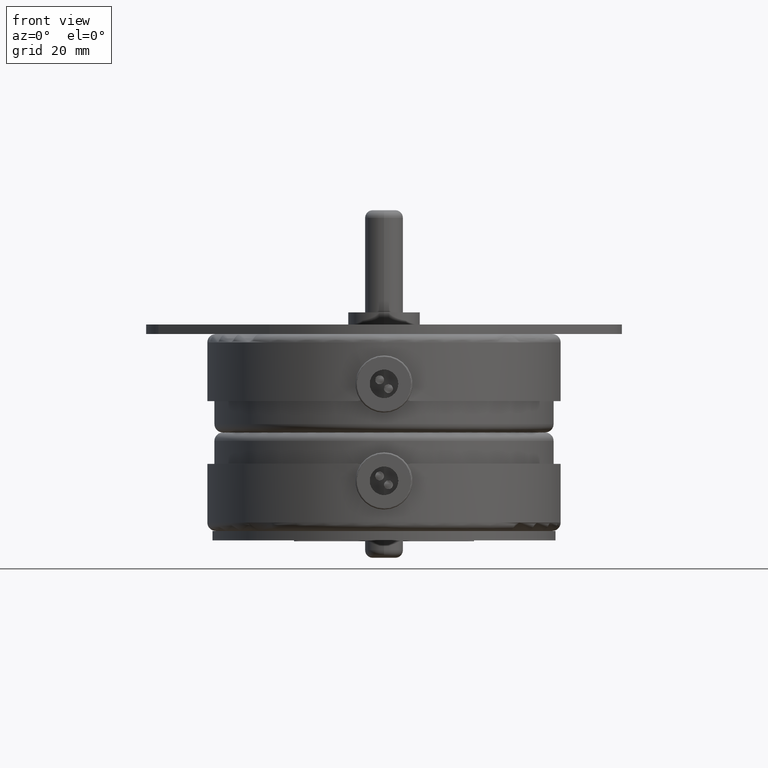
[diagram: clean part render]
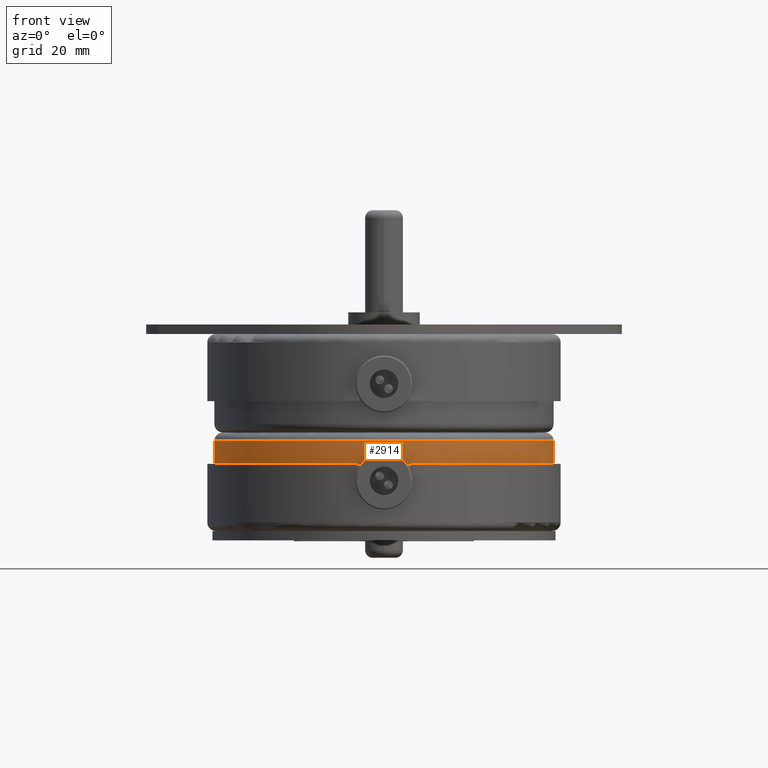
[diagram: same view with one face highlighted and labeled with its STEP entity id]
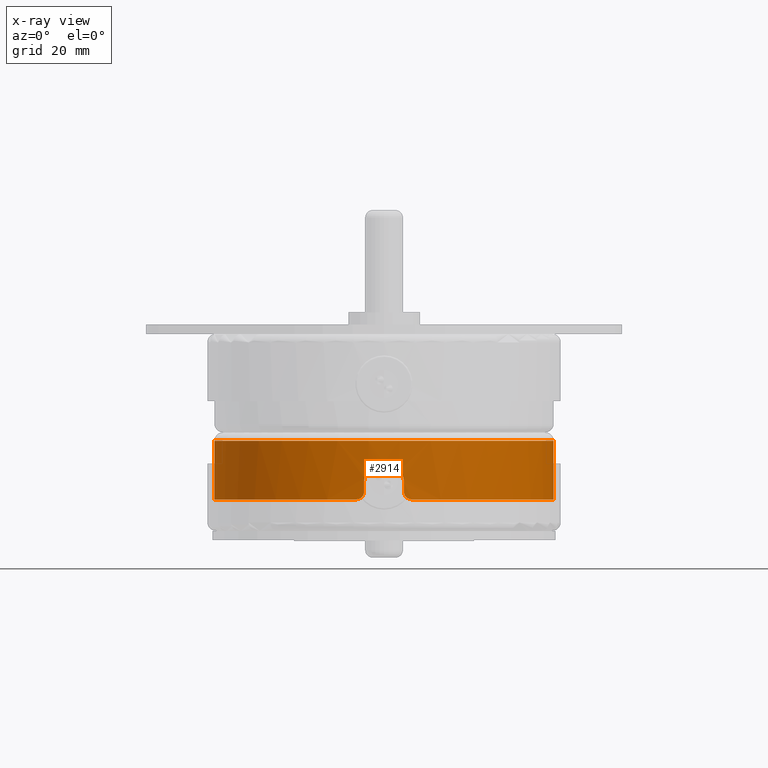
[diagram: x-ray of the same camera — body ghosted, the highlighted face saturated]
A machine part, front view. The second image highlights one B-rep face of the part: STEP entity #2914.
The next image is the same camera in x-ray: the body ghosted, the highlighted face saturated — about 0% of this face is hidden behind the body in this view.
In plain terms, the highlighted cylindrical surface (partial cylindrical patch) has radius 28.2575 mm, axis along (0, 0, -1).
Its self-contained STEP definition (entity closure, byte-faithful):
#2545=CARTESIAN_POINT('',(-5.5E-2,0.E0,0.E0));
#2546=DIRECTION('',(-1.E0,0.E0,0.E0));
#2547=DIRECTION('',(0.E0,0.E0,-1.E0));
#2548=AXIS2_PLACEMENT_3D('',#2545,#2546,#2547);
#2555=DIRECTION('',(1.E0,2.387833520655E-12,1.998401444325E-13));
#2556=VECTOR('',#2555,6.5E-2);
#2557=CARTESIAN_POINT('',(-3.9E-1,-1.104803316515E0,-1.306364490371E-1));
#2558=LINE('',#2557,#2556);
#2559=CARTESIAN_POINT('',(-3.25E-1,-1.104803316515E0,-1.306364490371E-1));
#2560=CARTESIAN_POINT('',(-3.203833331623E-1,-1.104803918065E0,
-1.306313616764E-1));
#2561=CARTESIAN_POINT('',(-3.112364979396E-1,-1.104865614601E0,
-1.301112118168E-1));
#2562=CARTESIAN_POINT('',(-2.977117441596E-1,-1.105142109154E0,
-1.277510933350E-1));
#2563=CARTESIAN_POINT('',(-2.845745453408E-1,-1.105584120232E0,
-1.238831141294E-1));
#2564=CARTESIAN_POINT('',(-2.718425527748E-1,-1.106173435727E0,
-1.185289604730E-1));
#2565=CARTESIAN_POINT('',(-2.597009391929E-1,-1.106886958124E0,
-1.116968487864E-1));
#2566=CARTESIAN_POINT('',(-2.484486534437E-1,-1.107676863542E0,
-1.036050563497E-1));
#2567=CARTESIAN_POINT('',(-2.380765684737E-1,-1.108515777482E0,
-9.424116538555E-2));
#2568=CARTESIAN_POINT('',(-2.288255757111E-1,-1.109353439127E0,
-8.386045220348E-2));
#2569=CARTESIAN_POINT('',(-2.204625575071E-1,-1.110183094772E0,
-7.210350752066E-2));
#2570=CARTESIAN_POINT('',(-2.134180716466E-1,-1.110932973098E0,
-5.952832196449E-2));
#2571=CARTESIAN_POINT('',(-2.075209227738E-1,-1.111596637967E0,
-4.556372012779E-2));
#2572=CARTESIAN_POINT('',(-2.033292953349E-1,-1.112100799902E0,
-3.108586908522E-2));
#2573=CARTESIAN_POINT('',(-2.006143508697E-1,-1.112429594826E0,
-1.532365843578E-2));
#2574=CARTESIAN_POINT('',(-1.996669659122E-1,-1.112527927342E0,
-9.774176847742E-4));
#2575=CARTESIAN_POINT('',(-2.003693410004E-1,-1.112455955111E0,
1.318450422543E-2));
#2576=CARTESIAN_POINT('',(-2.028426620385E-1,-1.112161698801E0,
2.883252300226E-2));
#2577=CARTESIAN_POINT('',(-2.067861527791E-1,-1.111682458321E0,
4.342306519224E-2));
#2578=CARTESIAN_POINT('',(-2.123878913023E-1,-1.111046353880E0,
5.738596503600E-2));
#2579=CARTESIAN_POINT('',(-2.193201521983E-1,-1.110301811205E0,
7.026292498639E-2));
#2580=CARTESIAN_POINT('',(-2.274584370913E-1,-1.109484021771E0,
8.212966138802E-2));
#2581=CARTESIAN_POINT('',(-2.369212561117E-1,-1.108614553838E0,
9.309283478640E-2));
#2582=CARTESIAN_POINT('',(-2.474951084637E-1,-1.107748520413E0,
1.028454501588E-1));
#2583=CARTESIAN_POINT('',(-2.590459634669E-1,-1.106927637712E0,
1.113017598761E-1));
#2584=CARTESIAN_POINT('',(-2.716525260899E-1,-1.106182527319E0,
1.184472297684E-1));
#2585=CARTESIAN_POINT('',(-2.845179913672E-1,-1.105584501405E0,
1.238806435688E-1));
#2586=CARTESIAN_POINT('',(-2.981205670525E-1,-1.105130551554E0,
1.278511239456E-1));
#2587=CARTESIAN_POINT('',(-3.113187309169E-1,-1.104866637366E0,
1.301020163255E-1));
#2588=CARTESIAN_POINT('',(-3.204208548955E-1,-1.104804385777E0,
1.306274061986E-1));
#2589=CARTESIAN_POINT('',(-3.25E-1,-1.104803316515E0,1.306364490372E-1));
#2591=DIRECTION('',(-1.E0,1.930080027425E-12,-3.074463760500E-13));
#2592=VECTOR('',#2591,6.5E-2);
#2593=CARTESIAN_POINT('',(-3.25E-1,-1.104803316515E0,1.306364490372E-1));
#2594=LINE('',#2593,#2592);
#2595=CARTESIAN_POINT('',(-3.9E-1,-1.104803316515E0,1.306364490371E-1));
#2596=CARTESIAN_POINT('',(-3.944051338006E-1,-1.104802200925E0,
1.306458836719E-1));
#2597=CARTESIAN_POINT('',(-4.028753155529E-1,-1.104667642622E0,
1.317931054413E-1));
#2598=CARTESIAN_POINT('',(-4.150759014282E-1,-1.104036969451E0,
1.370146105615E-1));
#2599=CARTESIAN_POINT('',(-4.252263220132E-1,-1.103022350576E0,
1.450101732519E-1));
#2600=CARTESIAN_POINT('',(-4.334324800851E-1,-1.101558383697E0,
1.557983367665E-1));
#2601=CARTESIAN_POINT('',(-4.386707857617E-1,-1.099695419756E0,
1.684862076758E-1));
#2602=CARTESIAN_POINT('',(-4.399887651091E-1,-1.098193449324E0,
1.779125374851E-1));
#2603=CARTESIAN_POINT('',(-4.4E-1,-1.097363725818E0,1.828909600271E-1));
#2605=DIRECTION('',(1.E0,0.E0,0.E0));
#2606=VECTOR('',#2605,3.85E-1);
#2607=CARTESIAN_POINT('',(-4.4E-1,0.E0,1.1125E0));
#2608=LINE('',#2607,#2606);
#2609=CARTESIAN_POINT('',(-4.4E-1,-1.097363701914E0,-1.828911034514E-1));
#2610=CARTESIAN_POINT('',(-4.399907663063E-1,-1.098178059541E0,
-1.780048816309E-1));
#2611=CARTESIAN_POINT('',(-4.387203624984E-1,-1.099662250671E0,
-1.687011395690E-1));
#2612=CARTESIAN_POINT('',(-4.335362392671E-1,-1.101535932369E0,
-1.559603548444E-1));
#2613=CARTESIAN_POINT('',(-4.252696133408E-1,-1.103018940074E0,
-1.450384636140E-1));
#2614=CARTESIAN_POINT('',(-4.150387382420E-1,-1.104040764938E0,
-1.369842675986E-1));
#2615=CARTESIAN_POINT('',(-4.027747417008E-1,-1.104671025557E0,
-1.317644844974E-1));
#2616=CARTESIAN_POINT('',(-3.943600609877E-1,-1.104801990465E0,
-1.306476635523E-1));
#2617=CARTESIAN_POINT('',(-3.9E-1,-1.104803316515E0,-1.306364490371E-1));
#2676=CARTESIAN_POINT('',(-4.4E-1,0.E0,0.E0));
#2677=DIRECTION('',(1.E0,0.E0,0.E0));
#2678=DIRECTION('',(0.E0,-9.863943387991E-1,-1.643964974843E-1));
#2679=AXIS2_PLACEMENT_3D('',#2676,#2677,#2678);
#2700=DIRECTION('',(1.E0,0.E0,0.E0));
#2701=VECTOR('',#2700,3.85E-1);
#2702=CARTESIAN_POINT('',(-4.4E-1,0.E0,-1.1125E0));
#2703=LINE('',#2702,#2701);
#2717=CARTESIAN_POINT('',(-4.4E-1,0.E0,0.E0));
#2718=DIRECTION('',(1.E0,0.E0,0.E0));
#2719=DIRECTION('',(0.E0,0.E0,1.E0));
#2720=AXIS2_PLACEMENT_3D('',#2717,#2718,#2719);
#2806=CARTESIAN_POINT('',(-5.5E-2,0.E0,-1.1125E0));
#2808=VERTEX_POINT('',#2806);
#2812=CARTESIAN_POINT('',(-5.5E-2,0.E0,1.1125E0));
#2813=VERTEX_POINT('',#2812);
#2814=CARTESIAN_POINT('',(-3.9E-1,-1.104803316515E0,-1.306364490371E-1));
#2815=CARTESIAN_POINT('',(-3.25E-1,-1.104803316515E0,-1.306364490371E-1));
#2816=VERTEX_POINT('',#2814);
#2817=VERTEX_POINT('',#2815);
#2818=VERTEX_POINT('',#2589);
#2819=CARTESIAN_POINT('',(-3.9E-1,-1.104803316515E0,1.306364490371E-1));
#2820=VERTEX_POINT('',#2819);
#2821=VERTEX_POINT('',#2603);
#2822=CARTESIAN_POINT('',(-4.4E-1,0.E0,1.1125E0));
#2823=VERTEX_POINT('',#2822);
#2824=CARTESIAN_POINT('',(-4.4E-1,0.E0,-1.1125E0));
#2825=VERTEX_POINT('',#2824);
#2826=CARTESIAN_POINT('',(-4.4E-1,-1.097363701914E0,-1.828911034513E-1));
#2827=VERTEX_POINT('',#2826);
#2888=CARTESIAN_POINT('',(2.2E-2,0.E0,0.E0));
#2889=DIRECTION('',(-1.E0,0.E0,0.E0));
#2890=DIRECTION('',(0.E0,0.E0,-1.E0));
#2891=AXIS2_PLACEMENT_3D('',#2888,#2889,#2890);
#2892=CYLINDRICAL_SURFACE('',#2891,1.1125E0);
#2894=ORIENTED_EDGE('',*,*,#2893,.T.);
#2896=ORIENTED_EDGE('',*,*,#2895,.T.);
#2898=ORIENTED_EDGE('',*,*,#2897,.T.);
#2900=ORIENTED_EDGE('',*,*,#2899,.T.);
#2902=ORIENTED_EDGE('',*,*,#2901,.F.);
#2904=ORIENTED_EDGE('',*,*,#2903,.T.);
#2905=ORIENTED_EDGE('',*,*,#2880,.F.);
#2907=ORIENTED_EDGE('',*,*,#2906,.F.);
#2909=ORIENTED_EDGE('',*,*,#2908,.F.);
#2911=ORIENTED_EDGE('',*,*,#2910,.T.);
#2912=EDGE_LOOP('',(#2894,#2896,#2898,#2900,#2902,#2904,#2905,#2907,#2909,
#2911));
#2913=FACE_OUTER_BOUND('',#2912,.F.);
#2914=ADVANCED_FACE('',(#2913),#2892,.T.);
#2549=CIRCLE('',#2548,1.1125E0);
#2590=B_SPLINE_CURVE_WITH_KNOTS('',3,(#2559,#2560,#2561,#2562,#2563,#2564,#2565,
#2566,#2567,#2568,#2569,#2570,#2571,#2572,#2573,#2574,#2575,#2576,#2577,#2578,
#2579,#2580,#2581,#2582,#2583,#2584,#2585,#2586,#2587,#2588,#2589),
.UNSPECIFIED.,.F.,.F.,(4,1,1,1,1,1,1,1,1,1,1,1,1,1,1,1,1,1,1,1,1,1,1,1,1,1,1,1,
4),(0.E0,3.571428571429E-2,7.142857142857E-2,1.071428571429E-1,
1.428571428571E-1,1.785714285714E-1,2.142857142857E-1,2.5E-1,2.857142857143E-1,
3.214285714286E-1,3.571428571429E-1,3.928571428571E-1,4.285714285714E-1,
4.642857142857E-1,5.E-1,5.357142857143E-1,5.714285714286E-1,6.071428571429E-1,
6.428571428571E-1,6.785714285714E-1,7.142857142857E-1,7.5E-1,7.857142857143E-1,
8.214285714286E-1,8.571428571429E-1,8.928571428571E-1,9.285714285714E-1,
9.642857142857E-1,1.E0),.UNSPECIFIED.);
#2604=B_SPLINE_CURVE_WITH_KNOTS('',3,(#2595,#2596,#2597,#2598,#2599,#2600,#2601,
#2602,#2603),.UNSPECIFIED.,.F.,.F.,(4,1,1,1,1,1,4),(0.E0,1.666666666667E-1,
3.333333333333E-1,5.E-1,6.666666666667E-1,8.333333333333E-1,1.E0),
.UNSPECIFIED.);
#2618=B_SPLINE_CURVE_WITH_KNOTS('',3,(#2609,#2610,#2611,#2612,#2613,#2614,#2615,
#2616,#2617),.UNSPECIFIED.,.F.,.F.,(4,1,1,1,1,1,4),(0.E0,1.666666666667E-1,
3.333333333333E-1,5.E-1,6.666666666667E-1,8.333333333333E-1,1.E0),
.UNSPECIFIED.);
#2680=CIRCLE('',#2679,1.1125E0);
#2721=CIRCLE('',#2720,1.1125E0);
#2880=EDGE_CURVE('',#2808,#2813,#2549,.T.);
#2893=EDGE_CURVE('',#2816,#2817,#2558,.T.);
#2895=EDGE_CURVE('',#2817,#2818,#2590,.T.);
#2897=EDGE_CURVE('',#2818,#2820,#2594,.T.);
#2899=EDGE_CURVE('',#2820,#2821,#2604,.T.);
#2901=EDGE_CURVE('',#2823,#2821,#2721,.T.);
#2903=EDGE_CURVE('',#2823,#2813,#2608,.T.);
#2906=EDGE_CURVE('',#2825,#2808,#2703,.T.);
#2908=EDGE_CURVE('',#2827,#2825,#2680,.T.);
#2910=EDGE_CURVE('',#2827,#2816,#2618,.T.);